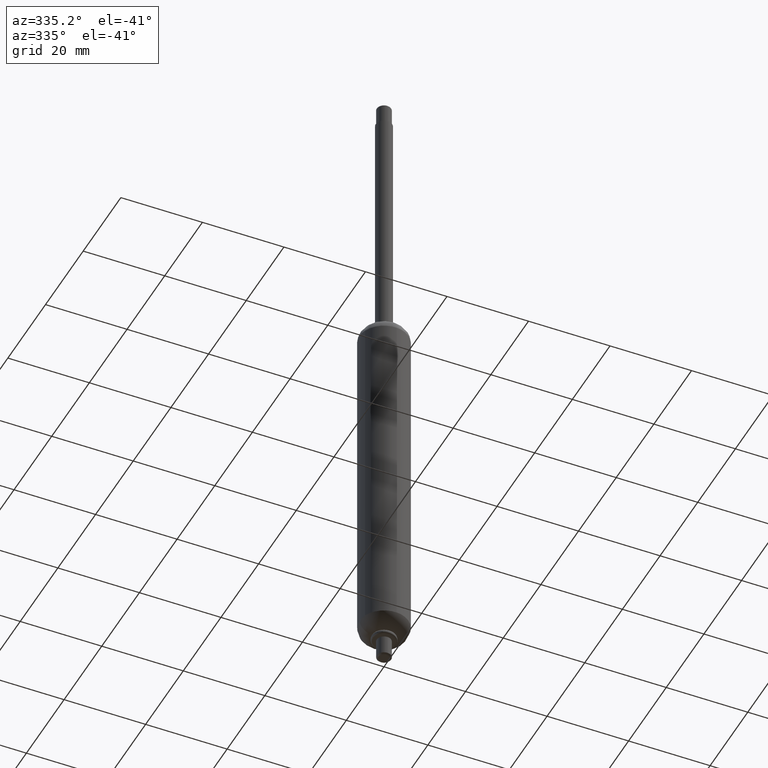
[diagram: clean part render]
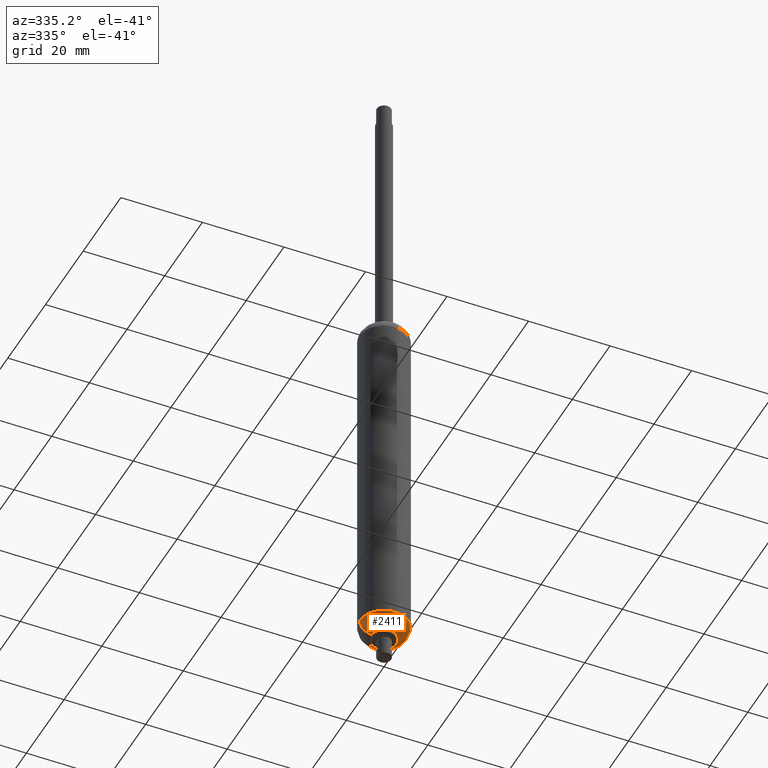
[diagram: same view with one face highlighted and labeled with its STEP entity id]
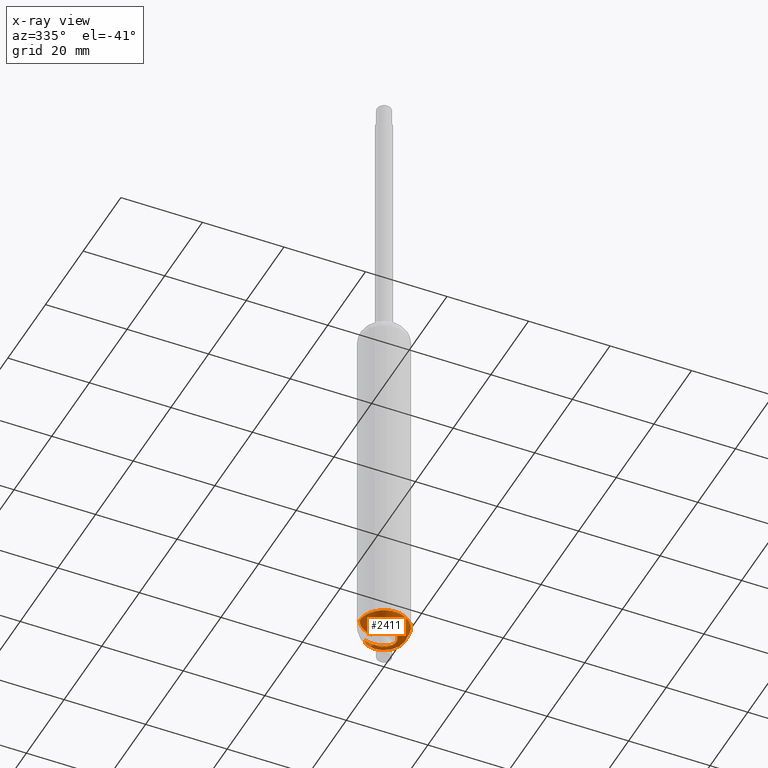
[diagram: x-ray of the same camera — body ghosted, the highlighted face saturated]
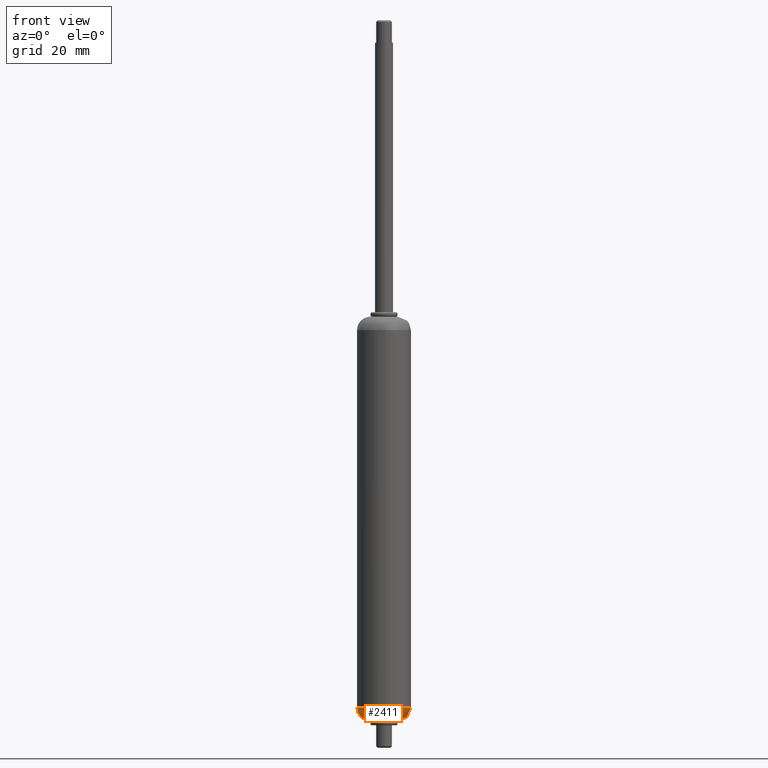
[diagram: same view with one face highlighted and labeled with its STEP entity id]
A machine part, auxiliary view. The second image highlights one B-rep face of the part: STEP entity #2411.
The next image is the same camera in x-ray: the body ghosted, the highlighted face saturated — about 0% of this face is hidden behind the body in this view.
A second angle (front view) of the same face is appended — the face is thin or edge-on in the first view.
In plain terms, the highlighted face is a freeform B-spline surface patch.
Its self-contained STEP definition (entity closure, byte-faithful):
#1786=CARTESIAN_POINT('',(-5.616861472640773,-2.109707846397987,-87.000004000000004));
#1787=VERTEX_POINT('',#1786);
#1788=CARTESIAN_POINT('',(-5.999999999999116,0.0,-87.000004000000004));
#1789=VERTEX_POINT('',#1788);
#1790=CARTESIAN_POINT('',(-5.616861472640772,-2.109707846397988,-87.000004000000004));
#1791=CARTESIAN_POINT('',(-5.999999999999114,-1.089644316454284,-87.000004000000004));
#1792=CARTESIAN_POINT('',(-5.999999999999114,0.0,-87.000004000000004));
#1800=(BOUNDED_CURVE()B_SPLINE_CURVE(2,(#1790,#1791,#1792),.UNSPECIFIED.,.F.,.U.)B_SPLINE_CURVE_WITH_KNOTS((3,3),(0.940284170896165,1.0),.UNSPECIFIED.)CURVE()GEOMETRIC_REPRESENTATION_ITEM()RATIONAL_B_SPLINE_CURVE((0.893499554632407,0.930038554398655,1.0))REPRESENTATION_ITEM(''));
#1801=EDGE_CURVE('',#1787,#1789,#1800,.T.);
#1872=CARTESIAN_POINT('',(0.366291237578961,-5.988808790507914,-87.000003999999990));
#1873=VERTEX_POINT('',#1872);
#1879=CARTESIAN_POINT('',(5.999999999999527,0.0,-87.000004000000004));
#1880=VERTEX_POINT('',#1879);
#1881=CARTESIAN_POINT('',(5.999999999999527,0.0,-87.000004000000004));
#1882=CARTESIAN_POINT('',(5.999999999999526,-5.644236400735485,-87.000004000000018));
#1883=CARTESIAN_POINT('',(0.366291237578961,-5.988808790507915,-87.000003999999990));
#1891=(BOUNDED_CURVE()B_SPLINE_CURVE(2,(#1881,#1882,#1883),.UNSPECIFIED.,.F.,.U.)B_SPLINE_CURVE_WITH_KNOTS((3,3),(0.500000000000000,0.739332962220669),.UNSPECIFIED.)CURVE()GEOMETRIC_REPRESENTATION_ITEM()RATIONAL_B_SPLINE_CURVE((1.0,0.719603993308120,0.976072041627552))REPRESENTATION_ITEM(''));
#1892=EDGE_CURVE('',#1880,#1873,#1891,.T.);
#1894=CARTESIAN_POINT('',(-2.119811799980141,5.613056024364620,-87.000004000000274));
#1895=VERTEX_POINT('',#1894);
#1896=CARTESIAN_POINT('',(-2.119811799980141,5.613056024364620,-87.000004000000288));
#1897=CARTESIAN_POINT('',(-1.095221686119702,5.999999999999320,-87.000003999999990));
#1898=CARTESIAN_POINT('',(2.060574E-013,5.999999999999321,-87.000004000000004));
#1899=CARTESIAN_POINT('',(5.999999999999526,5.999999999999320,-87.000004000000004));
#1900=CARTESIAN_POINT('',(5.999999999999527,0.0,-87.000004000000004));
#1908=(BOUNDED_CURVE()B_SPLINE_CURVE(2,(#1896,#1897,#1898,#1899,#1900),.UNSPECIFIED.,.F.,.U.)B_SPLINE_CURVE_WITH_KNOTS((3,2,3),(0.189999999998876,0.250000000000000,0.500000000000000),.UNSPECIFIED.)CURVE()GEOMETRIC_REPRESENTATION_ITEM()RATIONAL_B_SPLINE_CURVE((0.893152553775483,0.929705627483454,1.0,0.707106781186548,1.0))REPRESENTATION_ITEM(''));
#1909=EDGE_CURVE('',#1895,#1880,#1908,.T.);
#1941=CARTESIAN_POINT('',(0.366291237578961,-5.988808790507914,-87.000003999999990));
#1942=CARTESIAN_POINT('',(0.183316580162411,-5.999999999999321,-87.000004000000004));
#1943=CARTESIAN_POINT('',(2.060574E-013,-5.999999999999321,-87.000004000000004));
#1944=CARTESIAN_POINT('',(-4.155657574088703,-5.999999999999321,-87.000004000000004));
#1945=CARTESIAN_POINT('',(-5.616861472640773,-2.109707846397988,-87.000004000000018));
#1953=(BOUNDED_CURVE()B_SPLINE_CURVE(2,(#1941,#1942,#1943,#1944,#1945),.UNSPECIFIED.,.F.,.U.)B_SPLINE_CURVE_WITH_KNOTS((3,2,3),(0.739332962220668,0.750000000000000,0.940284170896165),.UNSPECIFIED.)CURVE()GEOMETRIC_REPRESENTATION_ITEM()RATIONAL_B_SPLINE_CURVE((0.976072041627550,0.987502787878426,1.0,0.777068226787893,0.893499554632407))REPRESENTATION_ITEM(''));
#1954=EDGE_CURVE('',#1873,#1787,#1953,.T.);
#2272=CARTESIAN_POINT('',(-0.984020090475738,2.605589749548773,-89.992304980604146));
#2273=CARTESIAN_POINT('',(-1.021914422976414,2.705930266257122,-90.000004036062208));
#2274=CARTESIAN_POINT('',(-1.059906255428732,2.806528953379918,-90.000003999999848));
#2275=CARTESIAN_POINT('',(-2.119811799960154,5.613056024372169,-90.000002993923474));
#2276=CARTESIAN_POINT('',(-2.119811799960154,5.613056024372171,-87.000004000000004));
#2277=CARTESIAN_POINT('',(-2.119811799960154,5.613056024372170,-86.892472743757622));
#2278=CARTESIAN_POINT('',(-2.117091814249186,5.605853766048367,-86.785217439824294));
#2279=CARTESIAN_POINT('',(-0.508403690679013,2.785209773322995,-89.992304980604132));
#2280=CARTESIAN_POINT('',(-0.527982171530812,2.892467405820501,-90.000004036062208));
#2281=CARTESIAN_POINT('',(-0.547611026694819,3.000001006076027,-90.000003999999848));
#2282=CARTESIAN_POINT('',(-1.095221686097625,5.999999999999323,-90.000002993923474));
#2283=CARTESIAN_POINT('',(-1.095221686097626,5.999999999999325,-87.000003999999990));
#2284=CARTESIAN_POINT('',(-1.095221686097625,5.999999999999324,-86.892472743757637));
#2285=CARTESIAN_POINT('',(-1.093816378637508,5.992301243786100,-86.785217439824308));
#2286=CARTESIAN_POINT('',(2.059984E-013,2.785209773322994,-89.992304980604132));
#2287=CARTESIAN_POINT('',(2.059984E-013,2.892467405820501,-90.000004036062208));
#2288=CARTESIAN_POINT('',(2.059984E-013,3.000001006076027,-90.000003999999848));
#2289=CARTESIAN_POINT('',(2.059984E-013,5.999999999999323,-90.000002993923474));
#2290=CARTESIAN_POINT('',(2.059984E-013,5.999999999999325,-87.000004000000004));
#2291=CARTESIAN_POINT('',(2.059984E-013,5.999999999999325,-86.892472743757622));
#2292=CARTESIAN_POINT('',(2.059984E-013,5.992301243786101,-86.785217439824294));
#2293=CARTESIAN_POINT('',(2.785209773323199,2.785209773322993,-89.992304980604132));
#2294=CARTESIAN_POINT('',(2.892467405820707,2.892467405820500,-90.000004036062194));
#2295=CARTESIAN_POINT('',(3.000001006076232,3.000001006076027,-90.000003999999848));
#2296=CARTESIAN_POINT('',(5.999999999999529,5.999999999999323,-90.000002993923445));
#2297=CARTESIAN_POINT('',(5.999999999999532,5.999999999999326,-87.000004000000004));
#2298=CARTESIAN_POINT('',(5.999999999999532,5.999999999999326,-86.892472743757637));
#2299=CARTESIAN_POINT('',(5.992301243786309,5.992301243786102,-86.785217439824308));
#2300=CARTESIAN_POINT('',(2.785209773323200,0.0,-89.992304980604132));
#2301=CARTESIAN_POINT('',(2.892467405820707,0.0,-90.000004036062208));
#2302=CARTESIAN_POINT('',(3.000001006076233,0.0,-90.000003999999848));
#2303=CARTESIAN_POINT('',(5.999999999999529,0.0,-90.000002993923474));
#2304=CARTESIAN_POINT('',(5.999999999999532,0.0,-87.000004000000004));
#2305=CARTESIAN_POINT('',(5.999999999999531,0.0,-86.892472743757622));
#2306=CARTESIAN_POINT('',(5.992301243786307,0.0,-86.785217439824294));
#2307=CARTESIAN_POINT('',(2.785209773323199,-2.785209773322993,-89.992304980604132));
#2308=CARTESIAN_POINT('',(2.892467405820707,-2.892467405820500,-90.000004036062194));
#2309=CARTESIAN_POINT('',(3.000001006076232,-3.000001006076027,-90.000003999999848));
#2310=CARTESIAN_POINT('',(5.999999999999529,-5.999999999999323,-90.000002993923445));
#2311=CARTESIAN_POINT('',(5.999999999999532,-5.999999999999326,-87.000004000000004));
#2312=CARTESIAN_POINT('',(5.999999999999532,-5.999999999999326,-86.892472743757637));
#2313=CARTESIAN_POINT('',(5.992301243786309,-5.992301243786102,-86.785217439824308));
#2314=CARTESIAN_POINT('',(2.059984E-013,-2.785209773322994,-89.992304980604132));
#2315=CARTESIAN_POINT('',(2.059984E-013,-2.892467405820501,-90.000004036062208));
#2316=CARTESIAN_POINT('',(2.059984E-013,-3.000001006076027,-90.000003999999848));
#2317=CARTESIAN_POINT('',(2.059984E-013,-5.999999999999323,-90.000002993923474));
#2318=CARTESIAN_POINT('',(2.059984E-013,-5.999999999999325,-87.000004000000004));
#2319=CARTESIAN_POINT('',(2.059984E-013,-5.999999999999325,-86.892472743757622));
#2320=CARTESIAN_POINT('',(2.059984E-013,-5.992301243786101,-86.785217439824294));
#2321=CARTESIAN_POINT('',(-2.785209773322787,-2.785209773322993,-89.992304980604132));
#2322=CARTESIAN_POINT('',(-2.892467405820293,-2.892467405820500,-90.000004036062194));
#2323=CARTESIAN_POINT('',(-3.000001006075821,-3.000001006076027,-90.000003999999848));
#2324=CARTESIAN_POINT('',(-5.999999999999117,-5.999999999999323,-90.000002993923445));
#2325=CARTESIAN_POINT('',(-5.999999999999120,-5.999999999999326,-87.000004000000004));
#2326=CARTESIAN_POINT('',(-5.999999999999121,-5.999999999999326,-86.892472743757637));
#2327=CARTESIAN_POINT('',(-5.992301243785897,-5.992301243786102,-86.785217439824308));
#2328=CARTESIAN_POINT('',(-2.785209773322788,0.0,-89.992304980604132));
#2329=CARTESIAN_POINT('',(-2.892467405820295,0.0,-90.000004036062208));
#2330=CARTESIAN_POINT('',(-3.000001006075821,0.0,-90.000003999999848));
#2331=CARTESIAN_POINT('',(-5.999999999999117,0.0,-90.000002993923474));
#2332=CARTESIAN_POINT('',(-5.999999999999119,0.0,-87.000004000000004));
#2333=CARTESIAN_POINT('',(-5.999999999999118,0.0,-86.892472743757622));
#2334=CARTESIAN_POINT('',(-5.992301243785894,0.0,-86.785217439824294));
#2342=(BOUNDED_SURFACE()B_SPLINE_SURFACE(2,2,((#2272,#2279,#2286,#2293,#2300,#2307,#2314,#2321,#2328),(#2273,#2280,#2287,#2294,#2301,#2308,#2315,#2322,#2329),(#2274,#2281,#2288,#2295,#2302,#2309,#2316,#2323,#2330),(#2275,#2282,#2289,#2296,#2303,#2310,#2317,#2324,#2331),(#2276,#2283,#2290,#2297,#2304,#2311,#2318,#2325,#2332),(#2277,#2284,#2291,#2298,#2305,#2312,#2319,#2326,#2333),(#2278,#2285,#2292,#2299,#2306,#2313,#2320,#2327,#2334)),.UNSPECIFIED.,.F.,.F.,.U.)B_SPLINE_SURFACE_WITH_KNOTS((3,2,2,3),(3,2,2,2,3),(0.0,0.248280587498844,5.218842157283865,5.467117411948689),(0.0,2.385870119268759,12.326995616221920,22.268121113175091,32.209246610128247),.UNSPECIFIED.)GEOMETRIC_REPRESENTATION_ITEM()RATIONAL_B_SPLINE_SURFACE(((0.868324169722697,0.903861119422973,0.972201407308119,0.687450207786676,0.972201407308119,0.687450207786676,0.972201407308119,0.687450207786676,0.972201407308119),(0.880085668083013,0.916103967710200,0.985369928531712,0.696761758442077,0.985369928531712,0.696761758442077,0.985369928531712,0.696761758442077,0.985369928531712),(0.893152553776853,0.929705627484771,1.0,0.707106781186548,1.0,0.707106781186548,1.0,0.707106781186548,1.0),(0.631554333308352,0.657401263934431,0.707106899753814,0.500000083839718,0.707106899753814,0.500000083839718,0.707106899753814,0.500000083839718,0.707106899753814),(0.893152553776853,0.929705627484771,1.0,0.707106781186548,1.0,0.707106781186548,1.0,0.707106781186548,1.0),(0.880085948747455,0.916104259861087,0.985370242771918,0.696761980643458,0.985370242771918,0.696761980643458,0.985370242771918,0.696761980643458,0.985370242771918),(0.868324674975194,0.903861645353384,0.972201973003749,0.687450607793892,0.972201973003749,0.687450607793892,0.972201973003749,0.687450607793892,0.972201973003749)))REPRESENTATION_ITEM('')SURFACE());
#2343=CARTESIAN_POINT('',(-1.059905900081122,2.806528003448694,-90.000004000000018));
#2344=VERTEX_POINT('',#2343);
#2345=CARTESIAN_POINT('',(2.999999999999531,0.0,-90.000003999999990));
#2346=VERTEX_POINT('',#2345);
#2347=CARTESIAN_POINT('',(-1.059905900081122,2.806528003448694,-90.000004000000018));
#2348=CARTESIAN_POINT('',(-0.547610846336220,2.999999999999325,-90.000004000000004));
#2349=CARTESIAN_POINT('',(2.060574E-013,2.999999999999325,-90.000003999999990));
#2350=CARTESIAN_POINT('',(2.999999999999532,2.999999999999325,-90.000003999999990));
#2351=CARTESIAN_POINT('',(2.999999999999531,0.0,-90.000003999999990));
#2359=(BOUNDED_CURVE()B_SPLINE_CURVE(2,(#2347,#2348,#2349,#2350,#2351),.UNSPECIFIED.,.F.,.U.)B_SPLINE_CURVE_WITH_KNOTS((3,2,3),(0.189999999665112,0.250000000000000,0.500000000000000),.UNSPECIFIED.)CURVE()GEOMETRIC_REPRESENTATION_ITEM()RATIONAL_B_SPLINE_CURVE((0.893152553368813,0.929705627092425,1.0,0.707106781186548,1.0))REPRESENTATION_ITEM(''));
#2360=EDGE_CURVE('',#2344,#2346,#2359,.T.);
#2361=ORIENTED_EDGE('',*,*,#2360,.F.);
#2362=CARTESIAN_POINT('',(-1.059905900081122,2.806528003448694,-90.000004000000004));
#2363=CARTESIAN_POINT('',(-2.119811799959962,5.613056024371659,-90.000004016275511));
#2364=CARTESIAN_POINT('',(-2.119811799980141,5.613056024364620,-87.000004000000274));
#2372=(BOUNDED_CURVE()B_SPLINE_CURVE(2,(#2362,#2363,#2364),.UNSPECIFIED.,.F.,.U.)B_SPLINE_CURVE_WITH_KNOTS((3,3),(0.249999939757303,0.499999999999968),.UNSPECIFIED.)CURVE()GEOMETRIC_REPRESENTATION_ITEM()RATIONAL_B_SPLINE_CURVE((0.893152679851943,0.631554270270855,0.893152553776785))REPRESENTATION_ITEM(''));
#2373=EDGE_CURVE('',#2344,#1895,#2372,.T.);
#2374=ORIENTED_EDGE('',*,*,#2373,.T.);
#2375=ORIENTED_EDGE('',*,*,#1909,.T.);
#2376=ORIENTED_EDGE('',*,*,#1892,.T.);
#2377=ORIENTED_EDGE('',*,*,#1954,.T.);
#2378=ORIENTED_EDGE('',*,*,#1801,.T.);
#2379=CARTESIAN_POINT('',(-3.000000001177776,0.0,-90.000004000000004));
#2380=VERTEX_POINT('',#2379);
#2381=CARTESIAN_POINT('',(-3.000000001177777,0.0,-90.000004000000033));
#2382=CARTESIAN_POINT('',(-5.999999999999123,0.0,-90.000003997642537));
#2383=CARTESIAN_POINT('',(-5.999999999999123,0.0,-87.000004000000033));
#2391=(BOUNDED_CURVE()B_SPLINE_CURVE(2,(#2381,#2382,#2383),.UNSPECIFIED.,.F.,.U.)B_SPLINE_CURVE_WITH_KNOTS((3,3),(0.249999940855262,0.500000000000000),.UNSPECIFIED.)CURVE()GEOMETRIC_REPRESENTATION_ITEM()RATIONAL_B_SPLINE_CURVE((1.000000138584718,0.707106830461471,1.0))REPRESENTATION_ITEM(''));
#2392=EDGE_CURVE('',#2380,#1789,#2391,.T.);
#2393=ORIENTED_EDGE('',*,*,#2392,.F.);
#2394=CARTESIAN_POINT('',(2.999999999999531,0.0,-90.000003999999990));
#2395=CARTESIAN_POINT('',(2.999999999999532,-2.999999999999325,-90.000003999999990));
#2396=CARTESIAN_POINT('',(2.060574E-013,-2.999999999999325,-90.000003999999990));
#2397=CARTESIAN_POINT('',(-2.999999999999120,-2.999999999999325,-90.000003999999990));
#2398=CARTESIAN_POINT('',(-3.000000001177776,0.0,-90.000004000000004));
#2406=(BOUNDED_CURVE()B_SPLINE_CURVE(2,(#2394,#2395,#2396,#2397,#2398),.UNSPECIFIED.,.F.,.U.)B_SPLINE_CURVE_WITH_KNOTS((3,2,3),(0.500000000000000,0.750000000000000,1.0),.UNSPECIFIED.)CURVE()GEOMETRIC_REPRESENTATION_ITEM()RATIONAL_B_SPLINE_CURVE((1.0,0.707106781186548,1.0,0.707106781186548,1.0))REPRESENTATION_ITEM(''));
#2407=EDGE_CURVE('',#2346,#2380,#2406,.T.);
#2408=ORIENTED_EDGE('',*,*,#2407,.F.);
#2409=EDGE_LOOP('',(#2361,#2374,#2375,#2376,#2377,#2378,#2393,#2408));
#2410=FACE_OUTER_BOUND('',#2409,.T.);
#2411=ADVANCED_FACE('',(#2410),#2342,.T.);